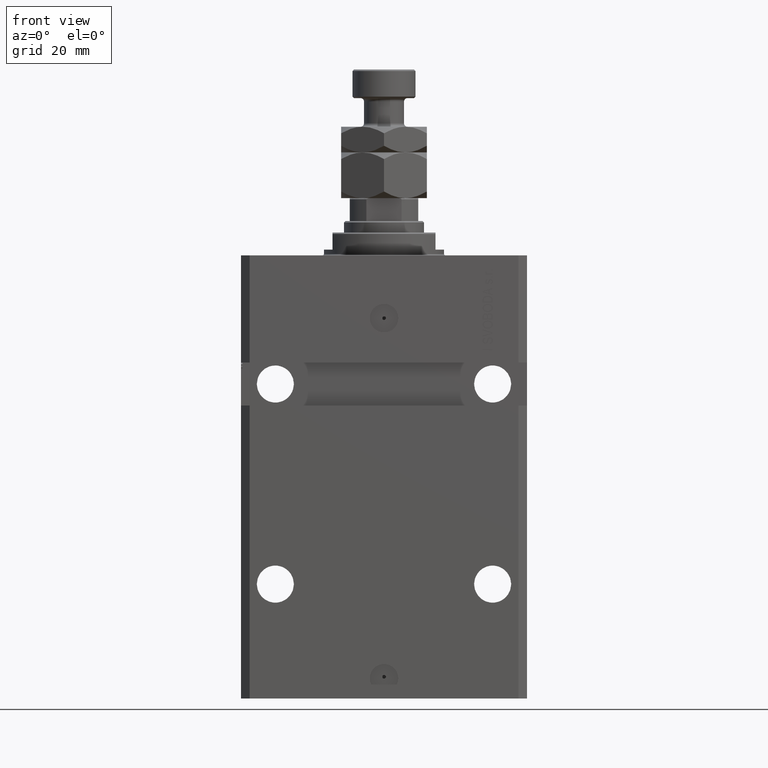
[diagram: clean part render]
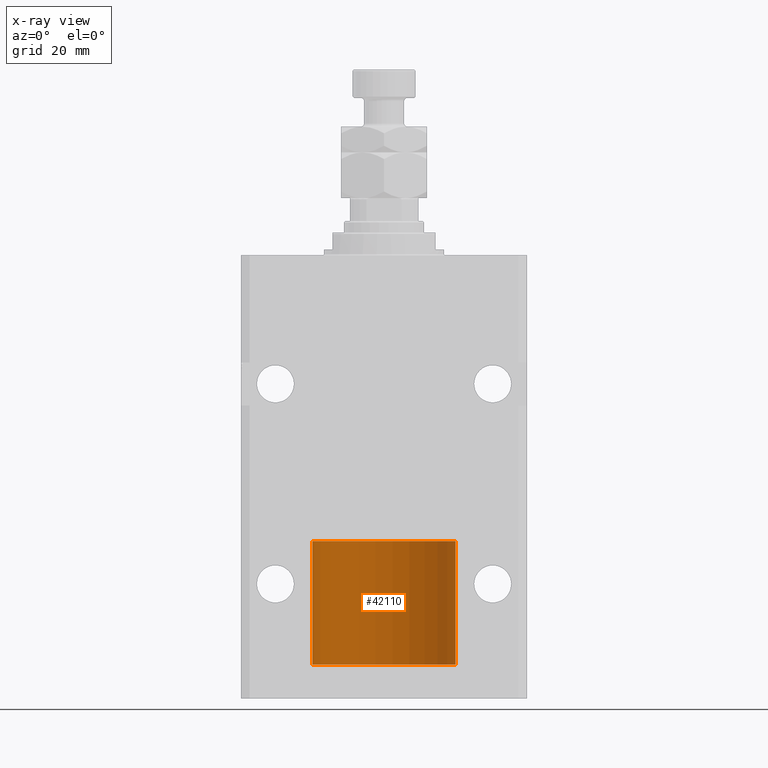
[diagram: x-ray — body ghosted, one internal face saturated and labeled with its STEP entity id]
A machine part, front view, then the same camera in x-ray: the body is ghosted and one INTERNAL B-rep face — a face not visible from any outside direction — is saturated and labeled: STEP entity #42110.
In plain terms, the highlighted cylindrical surface (partial cylindrical patch) has radius 25 mm, axis along (-0, -0, -1).
Its self-contained STEP definition (entity closure, byte-faithful):
#492 = CARTESIAN_POINT ( 'NONE',  ( 0.000000000000000000, 0.000000000000000000, 0.000000000000000000 ) ) ;
#2509 = EDGE_CURVE ( 'NONE', #30863, #10649, #23903, .T. ) ;
#3513 = DIRECTION ( 'NONE',  ( 1.000000000000000000, 0.000000000000000000, 0.000000000000000000 ) ) ;
#3761 = VECTOR ( 'NONE', #4244, 1000.000000000000000 ) ;
#4244 = DIRECTION ( 'NONE',  ( -0.000000000000000000, -0.000000000000000000, -1.000000000000000000 ) ) ;
#4913 = DIRECTION ( 'NONE',  ( 1.000000000000000000, 0.000000000000000000, 0.000000000000000000 ) ) ;
#5347 = EDGE_LOOP ( 'NONE', ( #11160, #19524, #27373, #38000 ) ) ;
#5361 = CARTESIAN_POINT ( 'NONE',  ( 25.00000000000000000, 3.061616997868383043E-15, 0.000000000000000000 ) ) ;
#7083 = CARTESIAN_POINT ( 'NONE',  ( 0.000000000000000000, 0.000000000000000000, 43.10000000000000142 ) ) ;
#8692 = DIRECTION ( 'NONE',  ( 0.000000000000000000, 0.000000000000000000, 1.000000000000000000 ) ) ;
#9179 = CARTESIAN_POINT ( 'NONE',  ( 0.000000000000000000, 0.000000000000000000, 43.10000000000000142 ) ) ;
#10649 = VERTEX_POINT ( 'NONE', #45860 ) ;
#11119 = FACE_OUTER_BOUND ( 'NONE', #5347, .T. ) ;
#11160 = ORIENTED_EDGE ( 'NONE', *, *, #35201, .F. ) ;
#16848 = CARTESIAN_POINT ( 'NONE',  ( -25.00000000000000000, 0.000000000000000000, 43.10000000000000142 ) ) ;
#19524 = ORIENTED_EDGE ( 'NONE', *, *, #36941, .T. ) ;
#20277 = CARTESIAN_POINT ( 'NONE',  ( 25.00000000000000000, 3.061616997868383043E-15, 43.10000000000000142 ) ) ;
#22336 = CARTESIAN_POINT ( 'NONE',  ( 25.00000000000000000, 3.061616997868383043E-15, 43.10000000000000142 ) ) ;
#22932 = DIRECTION ( 'NONE',  ( 0.000000000000000000, 0.000000000000000000, 1.000000000000000000 ) ) ;
#23406 = CARTESIAN_POINT ( 'NONE',  ( -25.00000000000000000, 0.000000000000000000, 43.10000000000000142 ) ) ;
#23903 = LINE ( 'NONE', #23406, #3761 ) ;
#27373 = ORIENTED_EDGE ( 'NONE', *, *, #49225, .T. ) ;
#28224 = CIRCLE ( 'NONE', #33894, 25.00000000000000000 ) ;
#28610 = CIRCLE ( 'NONE', #37538, 25.00000000000000000 ) ;
#30770 = CYLINDRICAL_SURFACE ( 'NONE', #38990, 25.00000000000000000 ) ;
#30863 = VERTEX_POINT ( 'NONE', #16848 ) ;
#33894 = AXIS2_PLACEMENT_3D ( 'NONE', #9179, #8692, #4913 ) ;
#35201 = EDGE_CURVE ( 'NONE', #38717, #30863, #28224, .T. ) ;
#36941 = EDGE_CURVE ( 'NONE', #38717, #47828, #44002, .T. ) ;
#37538 = AXIS2_PLACEMENT_3D ( 'NONE', #492, #22932, #3513 ) ;
#38000 = ORIENTED_EDGE ( 'NONE', *, *, #2509, .F. ) ;
#38362 = DIRECTION ( 'NONE',  ( -1.000000000000000000, 0.000000000000000000, 0.000000000000000000 ) ) ;
#38717 = VERTEX_POINT ( 'NONE', #22336 ) ;
#38816 = VECTOR ( 'NONE', #43509, 1000.000000000000000 ) ;
#38990 = AXIS2_PLACEMENT_3D ( 'NONE', #7083, #41659, #38362 ) ;
#41659 = DIRECTION ( 'NONE',  ( -0.000000000000000000, -0.000000000000000000, -1.000000000000000000 ) ) ;
#42110 = ADVANCED_FACE ( 'NONE', ( #11119 ), #30770, .T. ) ;
#43509 = DIRECTION ( 'NONE',  ( -0.000000000000000000, -0.000000000000000000, -1.000000000000000000 ) ) ;
#44002 = LINE ( 'NONE', #20277, #38816 ) ;
#45860 = CARTESIAN_POINT ( 'NONE',  ( -25.00000000000000000, 0.000000000000000000, 0.000000000000000000 ) ) ;
#47828 = VERTEX_POINT ( 'NONE', #5361 ) ;
#49225 = EDGE_CURVE ( 'NONE', #47828, #10649, #28610, .T. ) ;